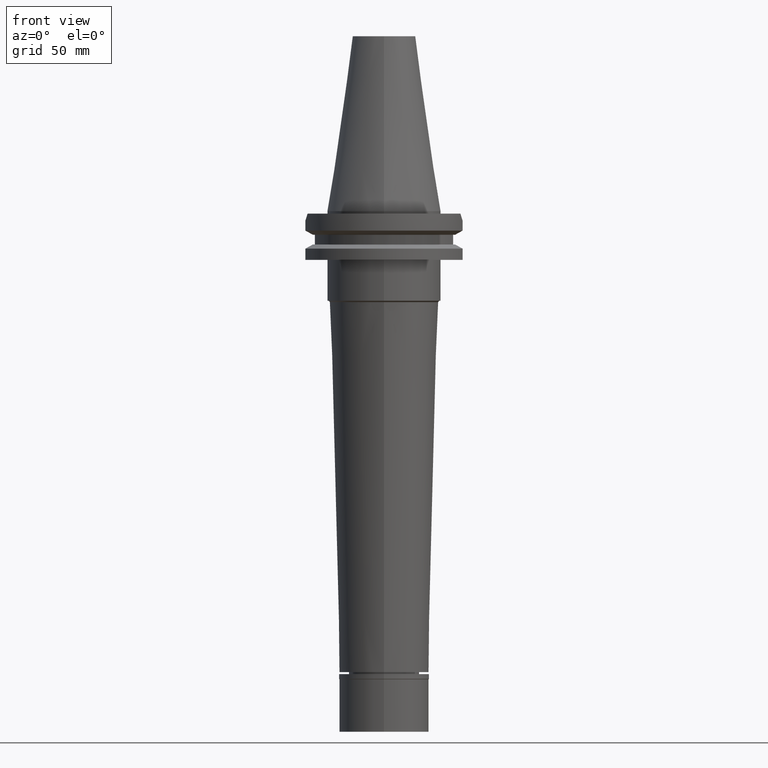
[diagram: clean part render]
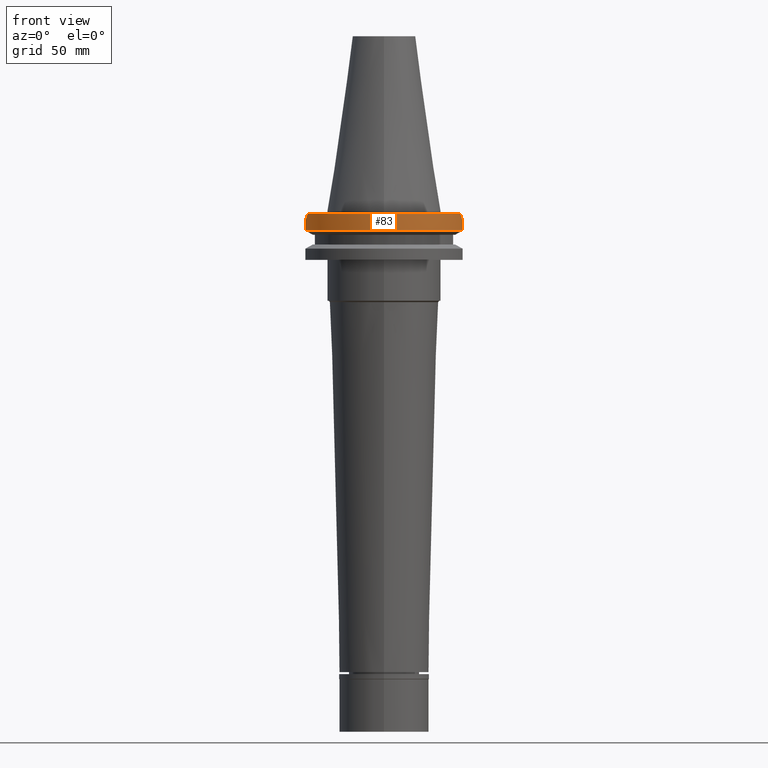
[diagram: same view with one face highlighted and labeled with its STEP entity id]
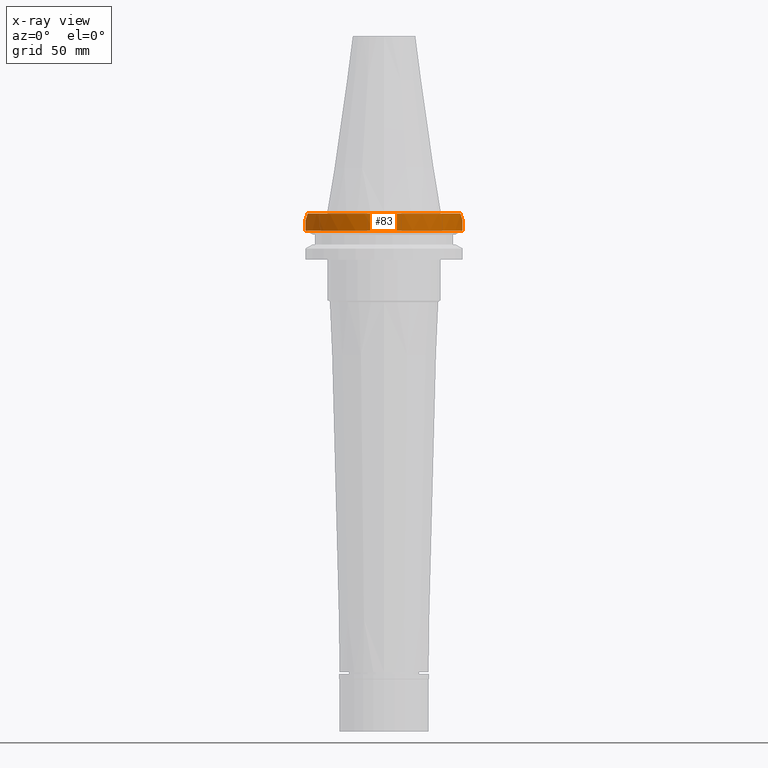
[diagram: x-ray of the same camera — body ghosted, the highlighted face saturated]
A machine part, front view. The second image highlights one B-rep face of the part: STEP entity #83.
The next image is the same camera in x-ray: the body ghosted, the highlighted face saturated — about 0% of this face is hidden behind the body in this view.
In plain terms, the highlighted cylindrical surface (partial cylindrical patch) has radius 31.75 mm, axis along (0, 0, -1).
Its self-contained STEP definition (entity closure, byte-faithful):
#68 = CARTESIAN_POINT ( 'NONE',  ( -30.14799306409551960, -10.00266721625513888, -1.887332783744861908 ) ) ;
#83 = ADVANCED_FACE ( 'NONE', ( #501 ), #1278, .T. ) ;
#108 = CARTESIAN_POINT ( 'NONE',  ( 30.67550162588999640, -8.189999999999999503, -3.700000000000000178 ) ) ;
#120 = DIRECTION ( 'NONE',  ( -0.9661575315241073270, -0.2579527559055020958, 0.0000000000000000000 ) ) ;
#501 = FACE_OUTER_BOUND ( 'NONE', #1394, .T. ) ;
#574 = ORIENTED_EDGE ( 'NONE', *, *, #2230, .F. ) ;
#609 = ORIENTED_EDGE ( 'NONE', *, *, #2210, .F. ) ;
#623 = B_SPLINE_CURVE_WITH_KNOTS ( 'NONE', 3,
 ( #1985, #2272, #3346, #1470 ),
 .UNSPECIFIED., .F., .F.,
 ( 4, 4 ),
 ( 0.0000000000000000000, 1.000000000000000000 ),
 .UNSPECIFIED. ) ;
#685 = CIRCLE ( 'NONE', #2766, 31.75000000000000000 ) ;
#714 = CARTESIAN_POINT ( 'NONE',  ( 30.67550146537999822, -8.190000601182999773, -7.608157985400000101 ) ) ;
#1052 = CARTESIAN_POINT ( 'NONE',  ( -30.67550162588999640, -8.189999999999999503, -3.700000000000000178 ) ) ;
#1098 = CARTESIAN_POINT ( 'NONE',  ( 0.0000000000000000000, 2.222580859602999833E-14, -1.000000000000000000 ) ) ;
#1132 = DIRECTION ( 'NONE',  ( -4.107004163246946933E-08, -1.538276136285980180E-07, -0.9999999999999872324 ) ) ;
#1241 = DIRECTION ( 'NONE',  ( 0.0000000000000000000, 0.0000000000000000000, -1.000000000000000000 ) ) ;
#1278 = CYLINDRICAL_SURFACE ( 'NONE', #1899, 31.75000000000000000 ) ;
#1360 = VERTEX_POINT ( 'NONE', #3235 ) ;
#1390 = CARTESIAN_POINT ( 'NONE',  ( 0.0000000000000000000, 1.121665249527999917E-14, -7.608163357944999206 ) ) ;
#1394 = EDGE_LOOP ( 'NONE', ( #2340, #1425, #2712, #609, #2171, #574 ) ) ;
#1425 = ORIENTED_EDGE ( 'NONE', *, *, #2243, .T. ) ;
#1431 = CARTESIAN_POINT ( 'NONE',  ( 29.82399034335000110, -10.89000000000000057, -1.000000000001000089 ) ) ;
#1465 = CARTESIAN_POINT ( 'NONE',  ( -30.67550165918999738, -8.189999875294001086, -7.608164472371999665 ) ) ;
#1470 = CARTESIAN_POINT ( 'NONE',  ( 30.67550162588999640, -8.189999999999999503, -3.700000000000000178 ) ) ;
#1592 = LINE ( 'NONE', #108, #2325 ) ;
#1683 = VERTEX_POINT ( 'NONE', #1052 ) ;
#1709 = VECTOR ( 'NONE', #1844, 1000.000000000000114 ) ;
#1810 = EDGE_CURVE ( 'NONE', #1683, #2675, #3289, .T. ) ;
#1818 = AXIS2_PLACEMENT_3D ( 'NONE', #1390, #2454, #120 ) ;
#1820 = EDGE_CURVE ( 'NONE', #3339, #3368, #2605, .T. ) ;
#1844 = DIRECTION ( 'NONE',  ( 8.519487939203996899E-09, -3.190908088073998522E-08, 0.9999999999999994449 ) ) ;
#1899 = AXIS2_PLACEMENT_3D ( 'NONE', #2061, #3130, #2874 ) ;
#1985 = CARTESIAN_POINT ( 'NONE',  ( 29.82399034335000110, -10.89000000000000057, -1.000000000001000089 ) ) ;
#2061 = CARTESIAN_POINT ( 'NONE',  ( 0.0000000000000000000, 2.222580859602999833E-14, 81.48750000000001137 ) ) ;
#2171 = ORIENTED_EDGE ( 'NONE', *, *, #1820, .T. ) ;
#2210 = EDGE_CURVE ( 'NONE', #3339, #1683, #2702, .T. ) ;
#2230 = EDGE_CURVE ( 'NONE', #1360, #3368, #1592, .T. ) ;
#2243 = EDGE_CURVE ( 'NONE', #3079, #2675, #685, .T. ) ;
#2272 = CARTESIAN_POINT ( 'NONE',  ( 30.14799306409552671, -10.00266721625513888, -1.887332783744861908 ) ) ;
#2325 = VECTOR ( 'NONE', #1132, 1000.000000000000227 ) ;
#2340 = ORIENTED_EDGE ( 'NONE', *, *, #2830, .F. ) ;
#2400 = CARTESIAN_POINT ( 'NONE',  ( -30.43183015827552040, -9.102667216255303728, -2.787332783744696840 ) ) ;
#2451 = CARTESIAN_POINT ( 'NONE',  ( -29.82399034335000110, -10.89000000000000057, -1.000000000001000089 ) ) ;
#2454 = DIRECTION ( 'NONE',  ( 0.0000000000000000000, 0.0000000000000000000, 1.000000000000000000 ) ) ;
#2461 = CARTESIAN_POINT ( 'NONE',  ( -30.67550165918999738, -8.189999875294001086, -7.608164472371999665 ) ) ;
#2605 = CIRCLE ( 'NONE', #1818, 31.74999999999998579 ) ;
#2675 = VERTEX_POINT ( 'NONE', #2451 ) ;
#2702 = LINE ( 'NONE', #2461, #1709 ) ;
#2712 = ORIENTED_EDGE ( 'NONE', *, *, #1810, .F. ) ;
#2715 = CARTESIAN_POINT ( 'NONE',  ( -30.67550162588999640, -8.189999999999999503, -3.700000000000000178 ) ) ;
#2766 = AXIS2_PLACEMENT_3D ( 'NONE', #1098, #1241, #3067 ) ;
#2830 = EDGE_CURVE ( 'NONE', #3079, #1360, #623, .T. ) ;
#2874 = DIRECTION ( 'NONE',  ( 0.0000000000000000000, -1.000000000000000000, 0.0000000000000000000 ) ) ;
#3067 = DIRECTION ( 'NONE',  ( 0.0000000000000000000, -1.000000000000000000, 0.0000000000000000000 ) ) ;
#3079 = VERTEX_POINT ( 'NONE', #1431 ) ;
#3130 = DIRECTION ( 'NONE',  ( 0.0000000000000000000, 0.0000000000000000000, -1.000000000000000000 ) ) ;
#3235 = CARTESIAN_POINT ( 'NONE',  ( 30.67550162588999640, -8.189999999999999503, -3.700000000000000178 ) ) ;
#3246 = CARTESIAN_POINT ( 'NONE',  ( -29.82399034335000110, -10.89000000000000057, -1.000000000001000089 ) ) ;
#3289 = B_SPLINE_CURVE_WITH_KNOTS ( 'NONE', 3,
 ( #2715, #2400, #68, #3246 ),
 .UNSPECIFIED., .F., .F.,
 ( 4, 4 ),
 ( 0.0000000000000000000, 1.000000000000000000 ),
 .UNSPECIFIED. ) ;
#3339 = VERTEX_POINT ( 'NONE', #1465 ) ;
#3346 = CARTESIAN_POINT ( 'NONE',  ( 30.43183015827552396, -9.102667216255303728, -2.787332783744696840 ) ) ;
#3368 = VERTEX_POINT ( 'NONE', #714 ) ;